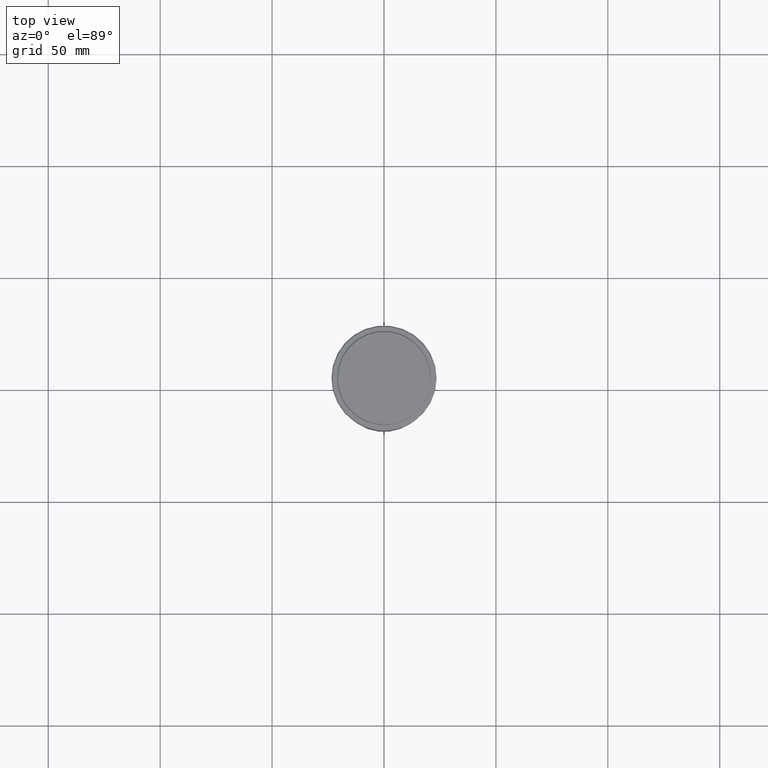
[diagram: clean part render]
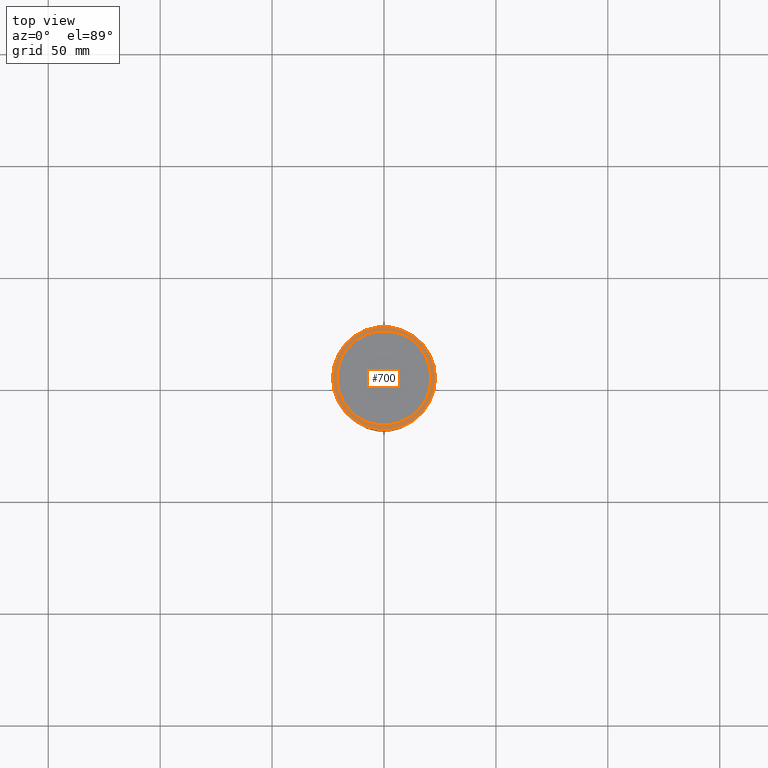
[diagram: same view with one face highlighted and labeled with its STEP entity id]
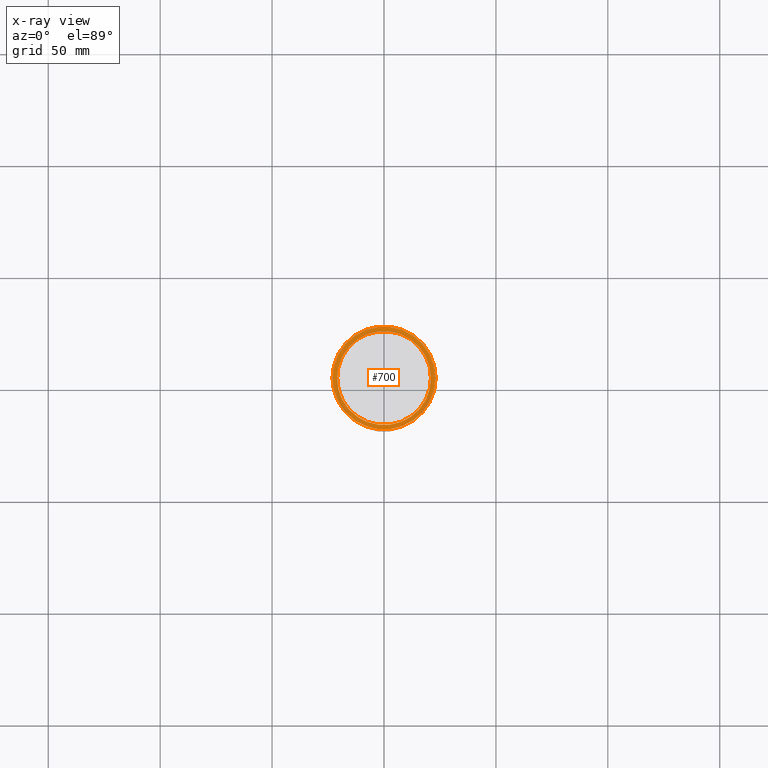
[diagram: x-ray of the same camera — body ghosted, the highlighted face saturated]
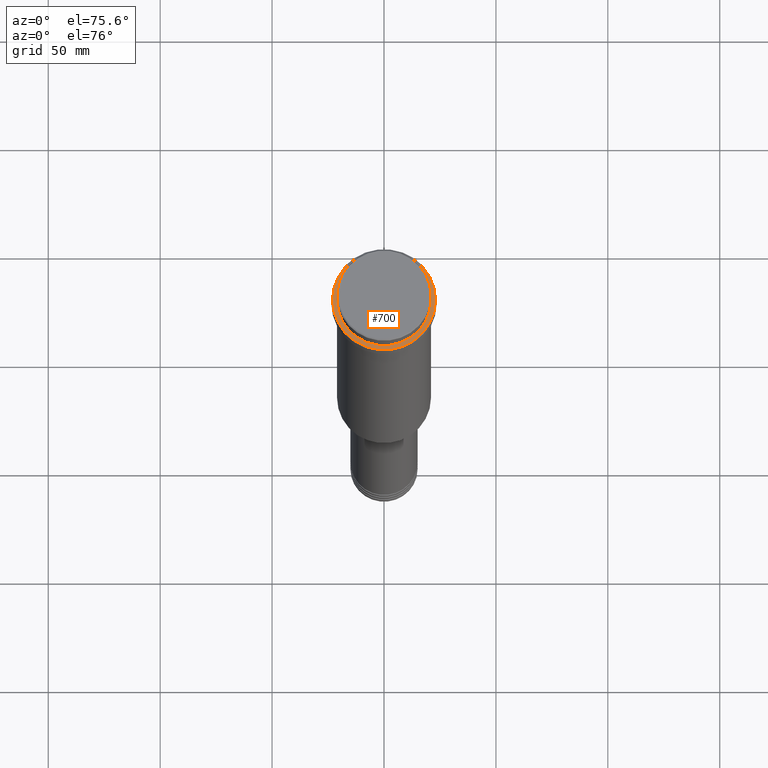
[diagram: same view with one face highlighted and labeled with its STEP entity id]
A machine part, top view. The second image highlights one B-rep face of the part: STEP entity #700.
The next image is the same camera in x-ray: the body ghosted, the highlighted face saturated — about 0% of this face is hidden behind the body in this view.
A second angle (auxiliary view) of the same face is appended — the face is thin or edge-on in the first view.
In plain terms, the highlighted planar face has unit normal (0, -0, 1).
Its self-contained STEP definition (entity closure, byte-faithful):
#2 = ORIENTED_EDGE ( 'NONE', *, *, #867, .T. ) ;
#106 = VERTEX_POINT ( 'NONE', #853 ) ;
#121 = FACE_BOUND ( 'NONE', #1380, .T. ) ;
#212 = CARTESIAN_POINT ( 'NONE',  ( 0.000000000000000000, 0.000000000000000000, -9.000000000000001776 ) ) ;
#216 = DIRECTION ( 'NONE',  ( 1.000000000000000000, 0.000000000000000000, 0.000000000000000000 ) ) ;
#218 = EDGE_CURVE ( 'NONE', #1221, #1242, #654, .T. ) ;
#224 = AXIS2_PLACEMENT_3D ( 'NONE', #572, #1091, #247 ) ;
#247 = DIRECTION ( 'NONE',  ( 1.000000000000000000, 0.000000000000000000, 0.000000000000000000 ) ) ;
#323 = CARTESIAN_POINT ( 'NONE',  ( 0.000000000000000000, 0.000000000000000000, -9.000000000000001776 ) ) ;
#445 = PLANE ( 'NONE',  #224 ) ;
#474 = EDGE_CURVE ( 'NONE', #649, #106, #590, .T. ) ;
#490 = CARTESIAN_POINT ( 'NONE',  ( 0.000000000000000000, 0.000000000000000000, -9.000000000000001776 ) ) ;
#539 = ORIENTED_EDGE ( 'NONE', *, *, #1215, .T. ) ;
#563 = DIRECTION ( 'NONE',  ( -0.000000000000000000, -0.000000000000000000, 1.000000000000000000 ) ) ;
#572 = CARTESIAN_POINT ( 'NONE',  ( 0.000000000000000000, 20.49999999999999645, -9.000000000000001776 ) ) ;
#586 = ORIENTED_EDGE ( 'NONE', *, *, #474, .T. ) ;
#589 = CARTESIAN_POINT ( 'NONE',  ( 23.00000000000002487, 2.847303808017597717E-15, -9.000000000000001776 ) ) ;
#590 = CIRCLE ( 'NONE', #1390, 20.99999999999999289 ) ;
#591 = AXIS2_PLACEMENT_3D ( 'NONE', #490, #715, #925 ) ;
#638 = AXIS2_PLACEMENT_3D ( 'NONE', #323, #760, #216 ) ;
#649 = VERTEX_POINT ( 'NONE', #785 ) ;
#654 = CIRCLE ( 'NONE', #748, 23.00000000000002487 ) ;
#700 = ADVANCED_FACE ( 'NONE', ( #999, #121 ), #445, .T. ) ;
#715 = DIRECTION ( 'NONE',  ( -0.000000000000000000, -0.000000000000000000, 1.000000000000000000 ) ) ;
#748 = AXIS2_PLACEMENT_3D ( 'NONE', #1336, #563, #762 ) ;
#760 = DIRECTION ( 'NONE',  ( 0.000000000000000000, 0.000000000000000000, -1.000000000000000000 ) ) ;
#762 = DIRECTION ( 'NONE',  ( 1.000000000000000000, 0.000000000000000000, 0.000000000000000000 ) ) ;
#785 = CARTESIAN_POINT ( 'NONE',  ( 20.99999999999999289, 0.000000000000000000, -9.000000000000001776 ) ) ;
#810 = CARTESIAN_POINT ( 'NONE',  ( -23.00000000000002487, 0.000000000000000000, -9.000000000000001776 ) ) ;
#853 = CARTESIAN_POINT ( 'NONE',  ( -20.99999999999999289, 2.571758278209440872E-15, -9.000000000000001776 ) ) ;
#867 = EDGE_CURVE ( 'NONE', #1242, #1221, #1092, .T. ) ;
#925 = DIRECTION ( 'NONE',  ( 1.000000000000000000, 0.000000000000000000, 0.000000000000000000 ) ) ;
#927 = ORIENTED_EDGE ( 'NONE', *, *, #218, .T. ) ;
#999 = FACE_OUTER_BOUND ( 'NONE', #1244, .T. ) ;
#1091 = DIRECTION ( 'NONE',  ( 0.000000000000000000, -0.000000000000000000, 1.000000000000000000 ) ) ;
#1092 = CIRCLE ( 'NONE', #591, 23.00000000000002487 ) ;
#1187 = DIRECTION ( 'NONE',  ( 0.000000000000000000, 0.000000000000000000, -1.000000000000000000 ) ) ;
#1215 = EDGE_CURVE ( 'NONE', #106, #649, #1237, .T. ) ;
#1221 = VERTEX_POINT ( 'NONE', #810 ) ;
#1237 = CIRCLE ( 'NONE', #638, 20.99999999999999289 ) ;
#1242 = VERTEX_POINT ( 'NONE', #589 ) ;
#1244 = EDGE_LOOP ( 'NONE', ( #927, #2 ) ) ;
#1275 = DIRECTION ( 'NONE',  ( 1.000000000000000000, 0.000000000000000000, 0.000000000000000000 ) ) ;
#1336 = CARTESIAN_POINT ( 'NONE',  ( 0.000000000000000000, 0.000000000000000000, -9.000000000000001776 ) ) ;
#1380 = EDGE_LOOP ( 'NONE', ( #586, #539 ) ) ;
#1390 = AXIS2_PLACEMENT_3D ( 'NONE', #212, #1187, #1275 ) ;